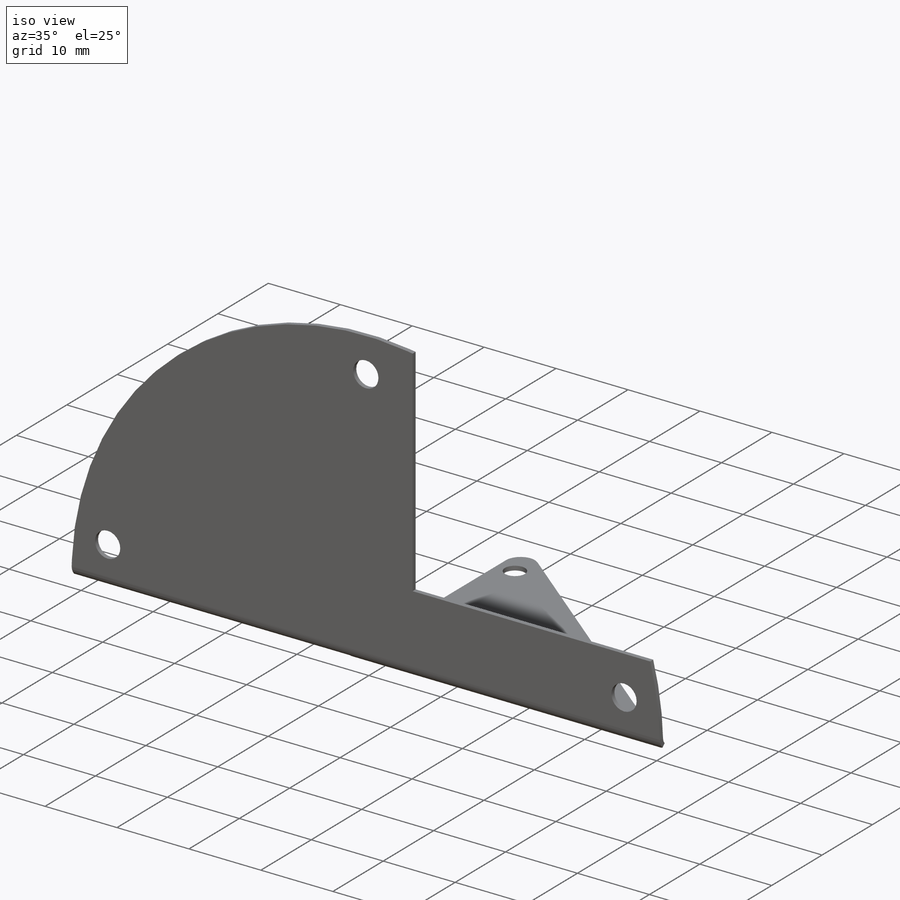
[diagram: iso view]
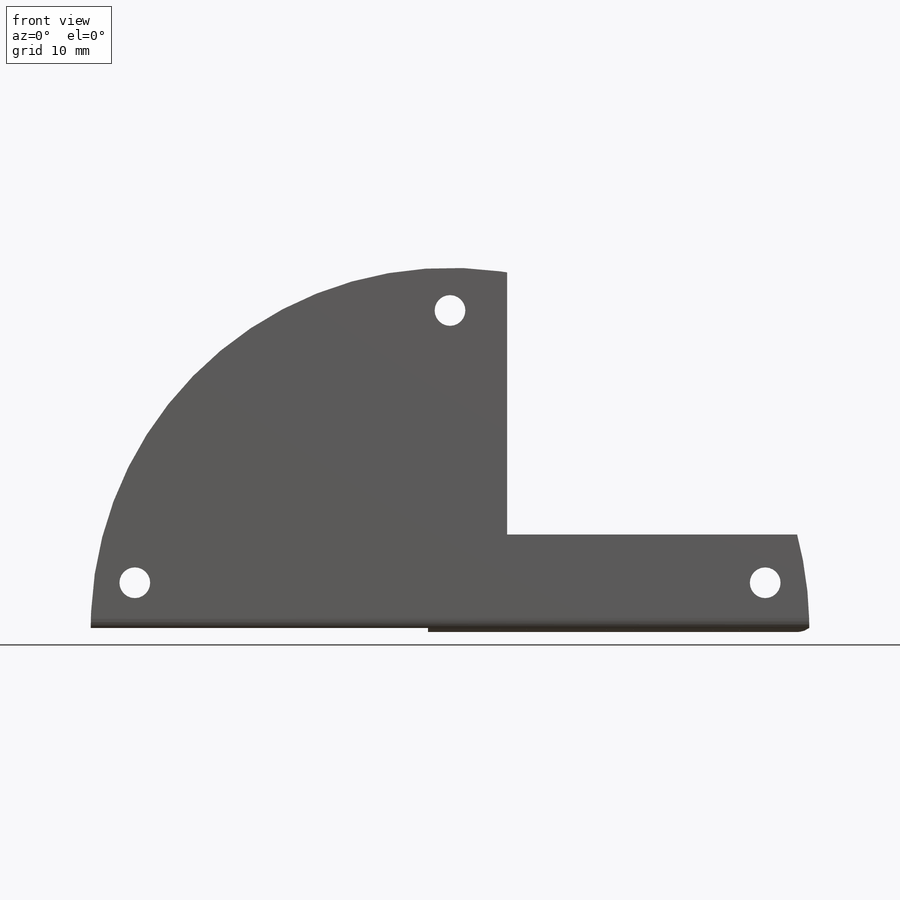
[diagram: front view]
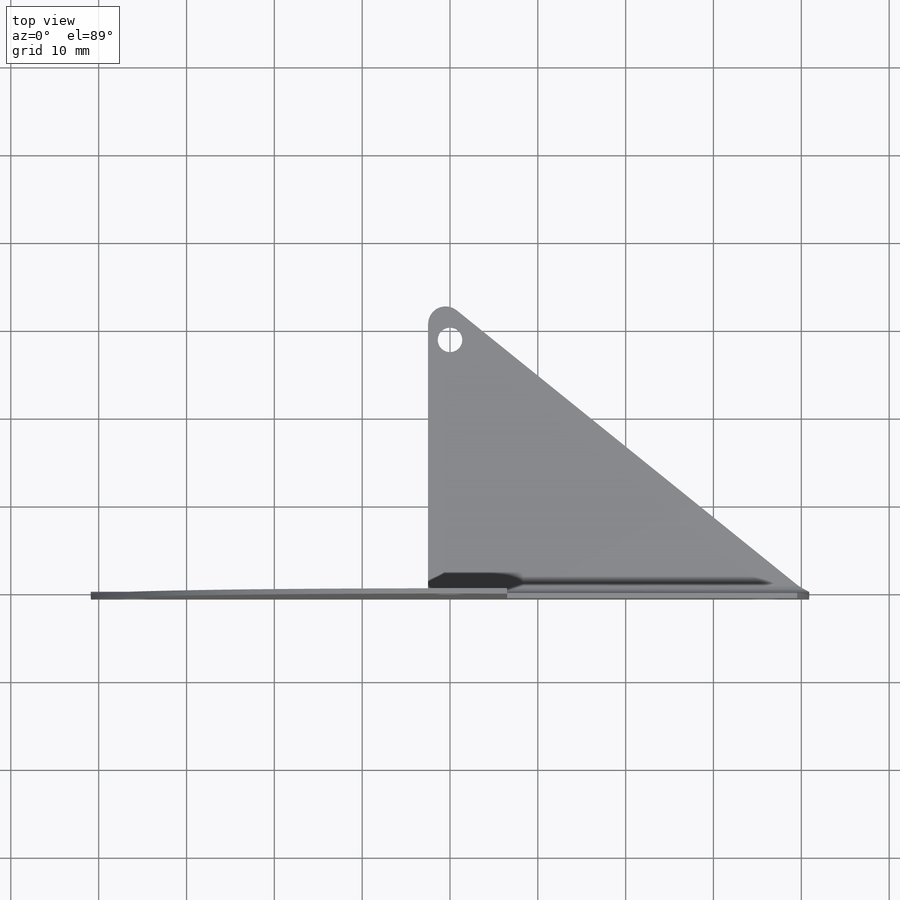
[diagram: top view]
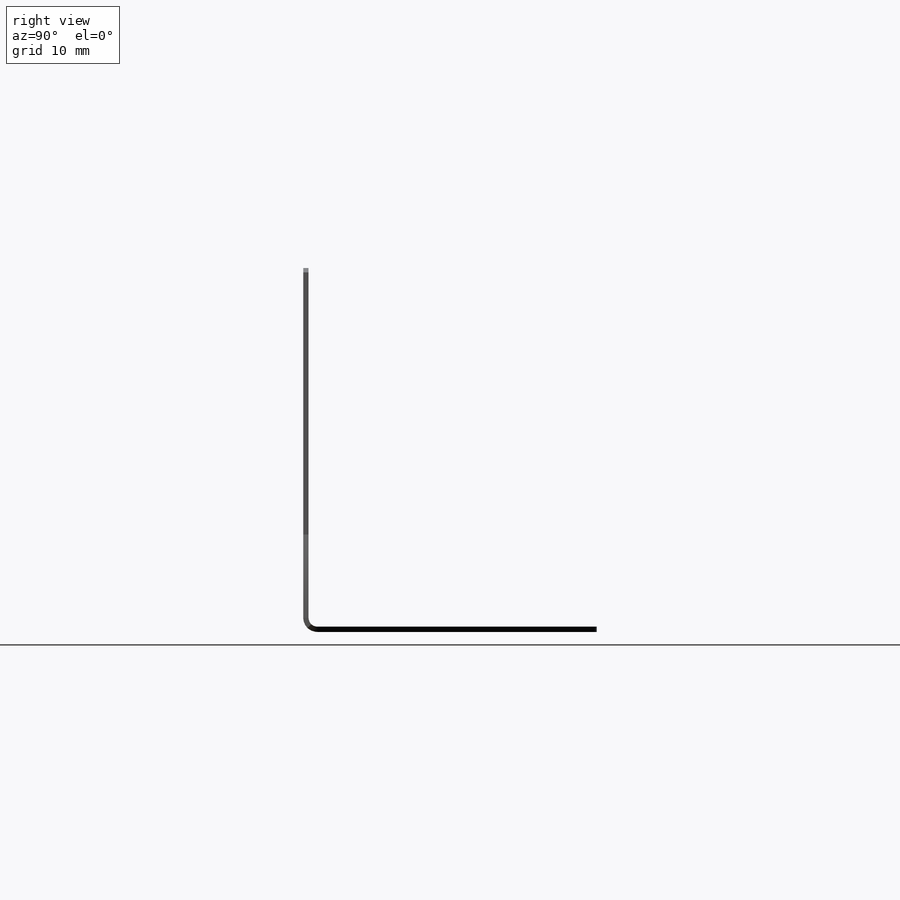
[diagram: right view]
SOLIDWORKS PART (.sldprt)
format: sldprt  version: not decoded by parser v0  size: 332,288 bytes
history: native  units: mm
features: sketch x25, sheet_metal_op x9, mirror x8, move_body x8, cut_extrude x4, material x1, plane x1 + 1 further entry (+12 scaffold rows collapsed; 2 parser-record rows omitted)
feature tree (71):
  scaffold x12  (default folders/planes/origin — collapsed)
  material  "Material <not specified>"
  parser-record x2  (decoder bookkeeping rows leaked as tree rows — omitted from the tree; the rows remain in map.json)
  sketch  "Sketch1"  dims[c1.D1=~65.599099mm c2.D1=1.0mm c2.D2=0.5 c2.D3=0.0mm c2.D6=500.0mm]
  sheet_metal_op  "Base-Flange1"
  sketch  "Sketch8"  dims[D1=43.4mm D2=35.0mm]
  sheet_metal_op  "Tab1"
  sketch  "Sketch14"
  sketch  "Sketch15"  dims[D1=28.0mm]
  cut_extrude  "Cut-Extrude1"  Depth=10mm
  plane  "Plane1"
  sketch  "Sketch16"  dims[D1=36.0mm]
  cut_extrude  "Cut-Extrude2"  Depth=10mm
  sketch  "Sketch17"  dims[D1=3.5mm D2=4.0mm D3=5.0mm]
  cut_extrude  "Cut-Extrude3"  Depth=10mm
  mirror  "Mirror1"
  move_body  "Body-Move/Copy1"
  sketch  "Sketch20"  dims[D1=9.5mm D2=6.5mm]
  cut_extrude  "Cut-Extrude4"  Depth=10mm
  sketch  "Sketch19"
  sketch  "Sketch18"
  sheet_metal_op  "Sheet-Metal(2)"
  "Flat-Pattern(2)"
  sketch  "Bend-Lines2"
  sketch  "Bounding-Box2"
  mirror  "Sheet-Metal(3)"
  move_body  "Flat-Pattern(3)"
  sketch  "Bend-Lines3"
  sketch  "Bounding-Box3"
  mirror  "Sheet-Metal(4)"
  move_body  "Flat-Pattern(4)"
  sketch  "Bend-Lines3"
  sketch  "Bounding-Box3"
  sheet_metal_op  "Flatten-<SketchBend1>2"
  mirror  "Sheet-Metal(5)"
  move_body  "Flat-Pattern(5)"
  sketch  "Bend-Lines3"
  sketch  "Bounding-Box3"
  sheet_metal_op  "Flatten-<SketchBend1>3"
  mirror  "Sheet-Metal(6)"
  move_body  "Flat-Pattern(6)"
  sketch  "Bend-Lines3"
  sketch  "Bounding-Box3"
  sheet_metal_op  "Flatten-<SketchBend1>4"
  mirror  "Sheet-Metal(7)"
  move_body  "Flat-Pattern(7)"
  sketch  "Bend-Lines3"
  sketch  "Bounding-Box3"
  sheet_metal_op  "Flatten-<SketchBend1>5"
  mirror  "Sheet-Metal(8)"
  move_body  "Flat-Pattern(7)"
  sketch  "Bend-Lines3"
  sketch  "Bounding-Box3"
  sheet_metal_op  "Flatten-<SketchBend1>5"
  mirror  "Sheet-Metal(9)"
  move_body  "Flat-Pattern(7)"
  sketch  "Bend-Lines3"
  sketch  "Bounding-Box3"
  sheet_metal_op  "Flatten-<SketchBend1>5"
decode coverage: 10 of 54 modeling features carry decoded parameters; 1 rows unclassified (native names shown)
note: ~ marks probable driven/reference dimensions
note: suppression state not decoded; provenance and decode notes live in map.json
